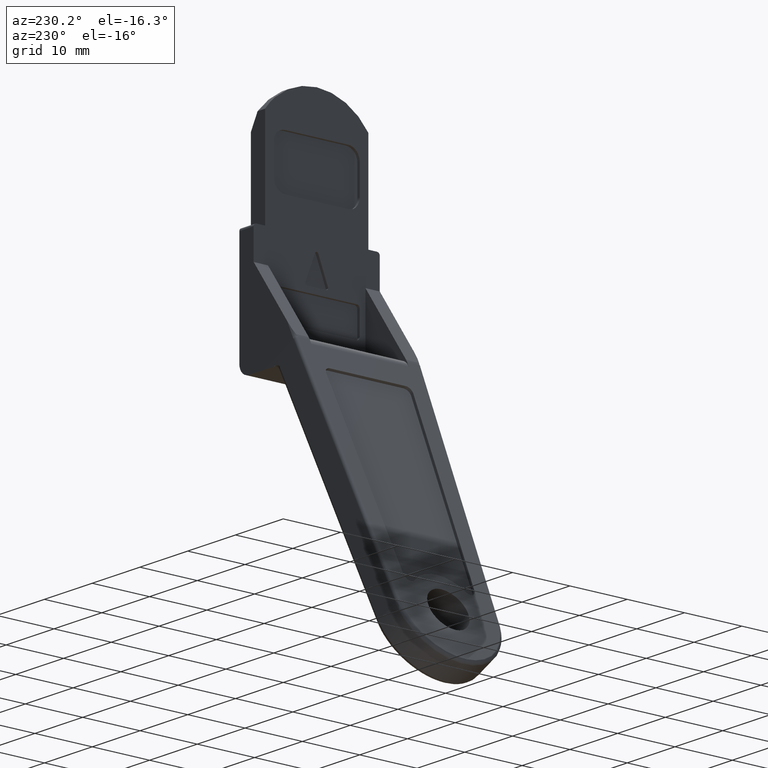
[diagram: clean part render]
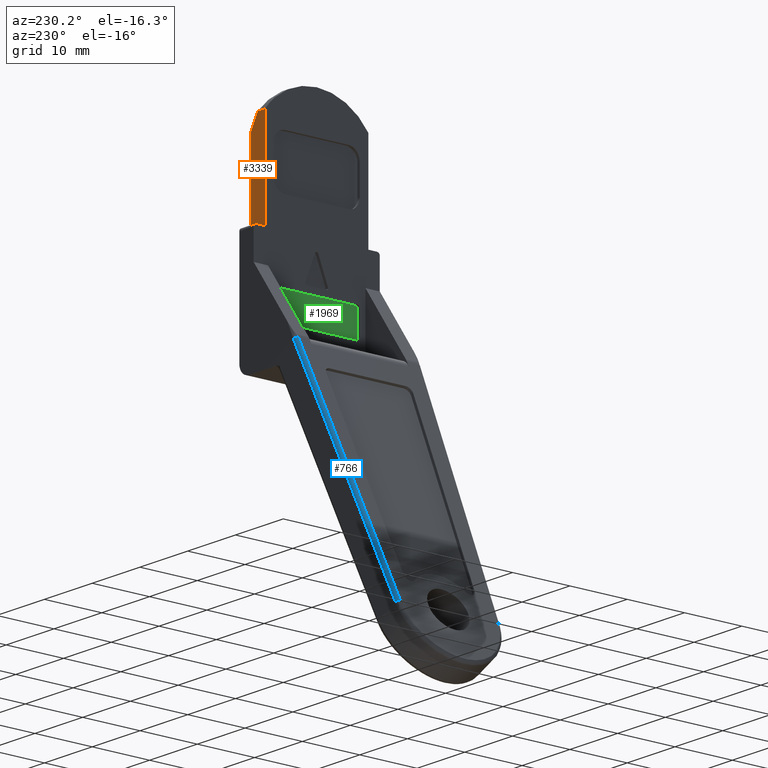
[diagram: same view with three faces highlighted in distinct colors, each labeled with its STEP entity id]
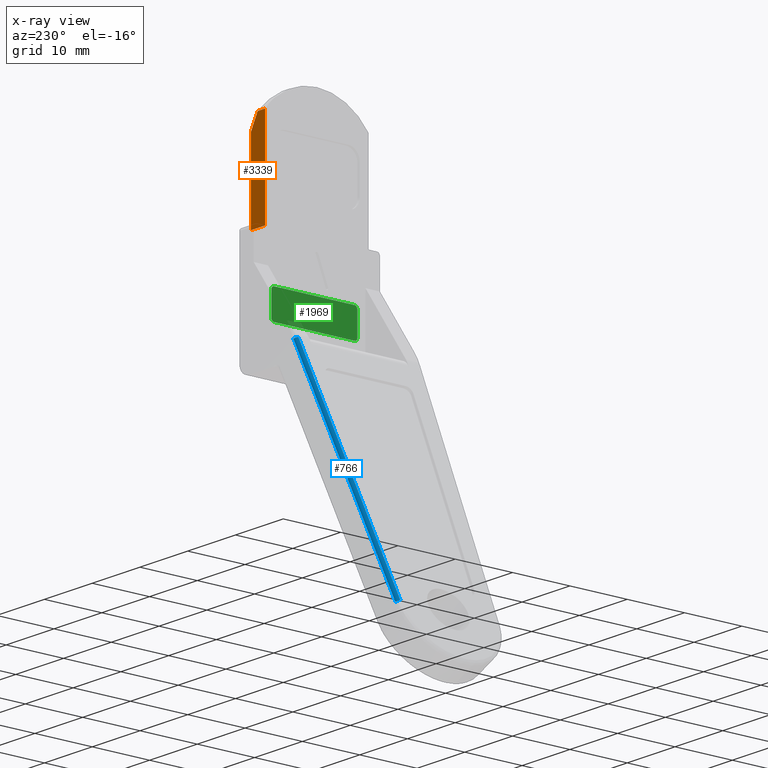
[diagram: x-ray of the same camera — body ghosted, the three highlighted faces saturated]
A machine part, auxiliary view with three faces highlighted in distinct colors.
The next image is the same camera in x-ray (body ghosted, the three faces saturated) — at least one of them is partly hidden behind the body in this view.
Their STEP definitions:

[orange] entity #3339 — the highlighted face is a freeform B-spline surface patch.
#2228=CARTESIAN_POINT('',(-1.418151426887560,9.000000025121729,6.324555284587900));
#2229=VERTEX_POINT('',#2228);
#2230=CARTESIAN_POINT('',(0.0,9.0,3.702697320336655));
#2231=VERTEX_POINT('',#2230);
#2232=CARTESIAN_POINT('',(-1.418151426887560,9.000000025121729,6.324555284587900));
#2233=CARTESIAN_POINT('',(-1.291489584601678,9.0,6.110439896160978));
#2234=CARTESIAN_POINT('',(-1.166475477758860,8.999999999999998,5.895251888107450));
#2235=CARTESIAN_POINT('',(-0.920237321511219,9.0,5.462408673755043));
#2236=CARTESIAN_POINT('',(-0.799094194356084,8.999999999999998,5.244890884922150));
#2237=CARTESIAN_POINT('',(-0.443034771754013,9.000000000000004,4.589613871422985));
#2238=CARTESIAN_POINT('',(-0.215213089639945,8.999999999999998,4.148782564435035));
#2239=CARTESIAN_POINT('',(-5.249350E-017,9.0,3.702697320336656));
#2240=B_SPLINE_CURVE_WITH_KNOTS('',3,(#2232,#2233,#2234,#2235,#2236,#2237,#2238,#2239),.UNSPECIFIED.,.F.,.U.,(4,2,2,4),(0.0,0.250000000000000,0.500000000000000,1.0),.UNSPECIFIED.);
#2241=EDGE_CURVE('',#2229,#2231,#2240,.T.);
#3305=CARTESIAN_POINT('',(-3.149849994185419,9.0,7.139966942656156));
#3306=CARTESIAN_POINT('',(-3.149849994185419,9.0,-10.815411949974051));
#3307=CARTESIAN_POINT('',(0.149850074651688,9.0,7.139966942656156));
#3308=CARTESIAN_POINT('',(0.149850074651688,9.0,-10.815411949974051));
#3309=B_SPLINE_SURFACE_WITH_KNOTS('',1,1,((#3305,#3307),(#3306,#3308)),.UNSPECIFIED.,.F.,.F.,.U.,(2,2),(2,2),(0.0,17.955378892630211),(0.0,3.299700068837107),.UNSPECIFIED.);
#3310=CARTESIAN_POINT('',(-3.0,9.000000025121729,6.324555284587900));
#3311=VERTEX_POINT('',#3310);
#3312=CARTESIAN_POINT('',(-1.418151426887560,9.000000025121729,6.324555284587900));
#3313=CARTESIAN_POINT('',(-3.0,9.000000025121729,6.324555284587900));
#3314=QUASI_UNIFORM_CURVE('',1,(#3312,#3313),.UNSPECIFIED.,.F.,.U.);
#3315=EDGE_CURVE('',#2229,#3311,#3314,.T.);
#3316=ORIENTED_EDGE('',*,*,#3315,.F.);
#3317=ORIENTED_EDGE('',*,*,#2241,.T.);
#3318=CARTESIAN_POINT('',(0.0,9.0,-10.0));
#3319=VERTEX_POINT('',#3318);
#3320=CARTESIAN_POINT('',(0.0,9.0,-10.0));
#3321=CARTESIAN_POINT('',(0.0,9.0,3.702697320336655));
#3322=QUASI_UNIFORM_CURVE('',1,(#3320,#3321),.UNSPECIFIED.,.F.,.U.);
#3323=EDGE_CURVE('',#3319,#2231,#3322,.T.);
#3324=ORIENTED_EDGE('',*,*,#3323,.F.);
#3325=CARTESIAN_POINT('',(-3.0,9.0,-10.0));
#3326=VERTEX_POINT('',#3325);
#3327=CARTESIAN_POINT('',(0.0,9.0,-10.0));
#3328=CARTESIAN_POINT('',(-3.0,9.0,-10.0));
#3329=QUASI_UNIFORM_CURVE('',1,(#3327,#3328),.UNSPECIFIED.,.F.,.U.);
#3330=EDGE_CURVE('',#3319,#3326,#3329,.T.);
#3331=ORIENTED_EDGE('',*,*,#3330,.T.);
#3332=CARTESIAN_POINT('',(-3.0,9.0,-10.0));
#3333=CARTESIAN_POINT('',(-3.0,9.000000025121729,6.324555284587900));
#3334=QUASI_UNIFORM_CURVE('',1,(#3332,#3333),.UNSPECIFIED.,.F.,.U.);
#3335=EDGE_CURVE('',#3326,#3311,#3334,.T.);
#3336=ORIENTED_EDGE('',*,*,#3335,.T.);
#3337=EDGE_LOOP('',(#3316,#3317,#3324,#3331,#3336));
#3338=FACE_OUTER_BOUND('',#3337,.T.);
#3339=ADVANCED_FACE('',(#3338),#3309,.F.);

[blue] entity #766 — the highlighted face is a freeform B-spline surface patch.
#435=CARTESIAN_POINT('',(-11.321809880560160,10.999499256270340,-28.064427606698501));
#436=VERTEX_POINT('',#435);
#450=CARTESIAN_POINT('',(-11.765509085131701,10.500000000000000,-27.832842829772751));
#451=VERTEX_POINT('',#450);
#452=CARTESIAN_POINT('',(-11.765509085131740,10.500000000000000,-27.832842829772730));
#453=CARTESIAN_POINT('',(-11.769425345618407,10.706899366358787,-27.841241277507859));
#454=CARTESIAN_POINT('',(-11.639468857403470,10.853199311326120,-27.909070888251421));
#455=CARTESIAN_POINT('',(-11.509512369188535,10.999499256293447,-27.976900498994993));
#456=CARTESIAN_POINT('',(-11.321809880560179,10.999499256270340,-28.064427606698530));
#464=(BOUNDED_CURVE()B_SPLINE_CURVE(2,(#452,#453,#454,#455,#456),.UNSPECIFIED.,.F.,.U.)B_SPLINE_CURVE_WITH_KNOTS((3,2,3),(0.0,0.500000000000000,1.0),.UNSPECIFIED.)CURVE()GEOMETRIC_REPRESENTATION_ITEM()RATIONAL_B_SPLINE_CURVE((1.0,0.923879532500603,1.0,0.923879532500603,1.0))REPRESENTATION_ITEM(''));
#465=EDGE_CURVE('',#451,#436,#464,.T.);
#630=CARTESIAN_POINT('',(-30.717667459222952,8.491487356595739,-68.475877713296512));
#631=VERTEX_POINT('',#630);
#647=CARTESIAN_POINT('',(-30.273968254651351,8.990986612866081,-68.707462490222298));
#648=VERTEX_POINT('',#647);
#649=CARTESIAN_POINT('',(-30.717667459222969,8.491487356595739,-68.475877713296526));
#650=CARTESIAN_POINT('',(-30.721583719709635,8.698386722954536,-68.484276161031673));
#651=CARTESIAN_POINT('',(-30.591627231494691,8.844686667921870,-68.552105771775217));
#652=CARTESIAN_POINT('',(-30.461670743279733,8.990986612889200,-68.619935382518790));
#653=CARTESIAN_POINT('',(-30.273968254651368,8.990986612866081,-68.707462490222341));
#661=(BOUNDED_CURVE()B_SPLINE_CURVE(2,(#649,#650,#651,#652,#653),.UNSPECIFIED.,.F.,.U.)B_SPLINE_CURVE_WITH_KNOTS((3,2,3),(0.0,0.500000000000000,1.0),.UNSPECIFIED.)CURVE()GEOMETRIC_REPRESENTATION_ITEM()RATIONAL_B_SPLINE_CURVE((1.0,0.923879532500596,1.0,0.923879532500596,1.0))REPRESENTATION_ITEM(''));
#662=EDGE_CURVE('',#631,#648,#661,.T.);
#738=CARTESIAN_POINT('',(-10.828230627263920,11.049236659743450,-27.057549611480329));
#739=CARTESIAN_POINT('',(-30.739842019043589,8.939043063766849,-69.758138135982549));
#740=CARTESIAN_POINT('',(-11.336080559155899,11.073655340579112,-26.821942031048955));
#741=CARTESIAN_POINT('',(-31.247691950935561,8.963461744602505,-69.522530555551143));
#742=CARTESIAN_POINT('',(-11.289929266880387,10.515218331169393,-26.815865683790982));
#743=CARTESIAN_POINT('',(-31.201540658660043,8.405024735192788,-69.516454208293197));
#751=(BOUNDED_SURFACE()B_SPLINE_SURFACE(1,2,((#738,#740,#742),(#739,#741,#743)),.UNSPECIFIED.,.F.,.F.,.U.)B_SPLINE_SURFACE_WITH_KNOTS((2,2),(3,3),(0.0,47.162118756143698),(0.0,0.994387289110106),.UNSPECIFIED.)GEOMETRIC_REPRESENTATION_ITEM()RATIONAL_B_SPLINE_SURFACE(((1.0,0.664513664345149,0.996234024380918),(1.0,0.664513664345149,0.996234024380918)))REPRESENTATION_ITEM('')SURFACE());
#752=CARTESIAN_POINT('',(-11.765509085131701,10.500000000000000,-27.832842829772751));
#753=CARTESIAN_POINT('',(-30.717667459222952,8.491487356595739,-68.475877713296512));
#754=QUASI_UNIFORM_CURVE('',1,(#752,#753),.UNSPECIFIED.,.F.,.U.);
#755=EDGE_CURVE('',#451,#631,#754,.T.);
#756=ORIENTED_EDGE('',*,*,#755,.F.);
#757=ORIENTED_EDGE('',*,*,#465,.T.);
#758=CARTESIAN_POINT('',(-30.273968254651351,8.990986612866081,-68.707462490222298));
#759=CARTESIAN_POINT('',(-11.321809880560160,10.999499256270340,-28.064427606698501));
#760=QUASI_UNIFORM_CURVE('',1,(#758,#759),.UNSPECIFIED.,.F.,.U.);
#761=EDGE_CURVE('',#648,#436,#760,.T.);
#762=ORIENTED_EDGE('',*,*,#761,.F.);
#763=ORIENTED_EDGE('',*,*,#662,.F.);
#764=EDGE_LOOP('',(#756,#757,#762,#763));
#765=FACE_OUTER_BOUND('',#764,.T.);
#766=ADVANCED_FACE('',(#765),#751,.T.);

[green] entity #1969 — the highlighted face is a freeform B-spline surface patch.
#1874=CARTESIAN_POINT('',(-2.500000000000000,8.249249970927089,-17.750250009690969));
#1875=CARTESIAN_POINT('',(-2.500000000000000,-8.249250373258443,-17.750250009690969));
#1876=CARTESIAN_POINT('',(-2.500000000000000,8.249249970927089,-23.249750124419489));
#1877=CARTESIAN_POINT('',(-2.500000000000000,-8.249250373258443,-23.249750124419489));
#1878=B_SPLINE_SURFACE_WITH_KNOTS('',1,1,((#1874,#1876),(#1875,#1877)),.UNSPECIFIED.,.F.,.F.,.U.,(2,2),(2,2),(0.0,16.498500344185530),(0.0,5.499500114728519),.UNSPECIFIED.);
#1879=CARTESIAN_POINT('',(-2.499999999999945,-7.0,-18.0));
#1880=VERTEX_POINT('',#1879);
#1881=CARTESIAN_POINT('',(-2.499999999999945,7.0,-18.0));
#1882=VERTEX_POINT('',#1881);
#1883=CARTESIAN_POINT('',(-2.499999999999945,-7.0,-18.0));
#1884=CARTESIAN_POINT('',(-2.499999999999945,7.0,-18.0));
#1885=QUASI_UNIFORM_CURVE('',1,(#1883,#1884),.UNSPECIFIED.,.F.,.U.);
#1886=EDGE_CURVE('',#1880,#1882,#1885,.T.);
#1887=ORIENTED_EDGE('',*,*,#1886,.T.);
#1888=CARTESIAN_POINT('',(-2.499999999999945,7.500000000000000,-18.500000000000000));
#1889=VERTEX_POINT('',#1888);
#1890=CARTESIAN_POINT('',(-2.499999999999945,7.0,-18.0));
#1891=CARTESIAN_POINT('',(-2.499999999999945,7.500000000000000,-18.000000000000007));
#1892=CARTESIAN_POINT('',(-2.499999999999945,7.500000000000000,-18.500000000000000));
#1900=(BOUNDED_CURVE()B_SPLINE_CURVE(2,(#1890,#1891,#1892),.UNSPECIFIED.,.F.,.U.)CURVE()GEOMETRIC_REPRESENTATION_ITEM()QUASI_UNIFORM_CURVE()RATIONAL_B_SPLINE_CURVE((1.0,0.707106781186548,1.0))REPRESENTATION_ITEM(''));
#1901=EDGE_CURVE('',#1882,#1889,#1900,.T.);
#1902=ORIENTED_EDGE('',*,*,#1901,.T.);
#1903=CARTESIAN_POINT('',(-2.499999999999945,7.500000000000000,-22.500000000000000));
#1904=VERTEX_POINT('',#1903);
#1905=CARTESIAN_POINT('',(-2.499999999999945,7.500000000000000,-18.500000000000000));
#1906=CARTESIAN_POINT('',(-2.499999999999945,7.500000000000000,-22.500000000000000));
#1907=QUASI_UNIFORM_CURVE('',1,(#1905,#1906),.UNSPECIFIED.,.F.,.U.);
#1908=EDGE_CURVE('',#1889,#1904,#1907,.T.);
#1909=ORIENTED_EDGE('',*,*,#1908,.T.);
#1910=CARTESIAN_POINT('',(-2.499999999999945,7.0,-23.0));
#1911=VERTEX_POINT('',#1910);
#1912=CARTESIAN_POINT('',(-2.499999999999945,7.500000000000000,-22.500000000000000));
#1913=CARTESIAN_POINT('',(-2.499999999999945,7.500000000000000,-22.999999999999993));
#1914=CARTESIAN_POINT('',(-2.499999999999945,7.0,-23.0));
#1922=(BOUNDED_CURVE()B_SPLINE_CURVE(2,(#1912,#1913,#1914),.UNSPECIFIED.,.F.,.U.)CURVE()GEOMETRIC_REPRESENTATION_ITEM()QUASI_UNIFORM_CURVE()RATIONAL_B_SPLINE_CURVE((1.0,0.707106781186548,1.0))REPRESENTATION_ITEM(''));
#1923=EDGE_CURVE('',#1904,#1911,#1922,.T.);
#1924=ORIENTED_EDGE('',*,*,#1923,.T.);
#1925=CARTESIAN_POINT('',(-2.499999999999945,-7.0,-23.0));
#1926=VERTEX_POINT('',#1925);
#1927=CARTESIAN_POINT('',(-2.499999999999945,7.0,-23.0));
#1928=CARTESIAN_POINT('',(-2.499999999999945,-7.0,-23.0));
#1929=QUASI_UNIFORM_CURVE('',1,(#1927,#1928),.UNSPECIFIED.,.F.,.U.);
#1930=EDGE_CURVE('',#1911,#1926,#1929,.T.);
#1931=ORIENTED_EDGE('',*,*,#1930,.T.);
#1932=CARTESIAN_POINT('',(-2.499999999999945,-7.500000000000000,-22.500000000000000));
#1933=VERTEX_POINT('',#1932);
#1934=CARTESIAN_POINT('',(-2.499999999999945,-7.0,-23.0));
#1935=CARTESIAN_POINT('',(-2.499999999999945,-7.500000000000000,-22.999999999999993));
#1936=CARTESIAN_POINT('',(-2.499999999999945,-7.500000000000000,-22.500000000000000));
#1944=(BOUNDED_CURVE()B_SPLINE_CURVE(2,(#1934,#1935,#1936),.UNSPECIFIED.,.F.,.U.)CURVE()GEOMETRIC_REPRESENTATION_ITEM()QUASI_UNIFORM_CURVE()RATIONAL_B_SPLINE_CURVE((1.0,0.707106781186548,1.0))REPRESENTATION_ITEM(''));
#1945=EDGE_CURVE('',#1926,#1933,#1944,.T.);
#1946=ORIENTED_EDGE('',*,*,#1945,.T.);
#1947=CARTESIAN_POINT('',(-2.499999999999945,-7.500000000000000,-18.500000000000000));
#1948=VERTEX_POINT('',#1947);
#1949=CARTESIAN_POINT('',(-2.499999999999945,-7.500000000000000,-22.500000000000000));
#1950=CARTESIAN_POINT('',(-2.499999999999945,-7.500000000000000,-18.500000000000000));
#1951=QUASI_UNIFORM_CURVE('',1,(#1949,#1950),.UNSPECIFIED.,.F.,.U.);
#1952=EDGE_CURVE('',#1933,#1948,#1951,.T.);
#1953=ORIENTED_EDGE('',*,*,#1952,.T.);
#1954=CARTESIAN_POINT('',(-2.499999999999945,-7.500000000000000,-18.500000000000000));
#1955=CARTESIAN_POINT('',(-2.499999999999945,-7.500000000000000,-18.000000000000007));
#1956=CARTESIAN_POINT('',(-2.499999999999945,-7.0,-18.0));
#1964=(BOUNDED_CURVE()B_SPLINE_CURVE(2,(#1954,#1955,#1956),.UNSPECIFIED.,.F.,.U.)CURVE()GEOMETRIC_REPRESENTATION_ITEM()QUASI_UNIFORM_CURVE()RATIONAL_B_SPLINE_CURVE((1.0,0.707106781186548,1.0))REPRESENTATION_ITEM(''));
#1965=EDGE_CURVE('',#1948,#1880,#1964,.T.);
#1966=ORIENTED_EDGE('',*,*,#1965,.T.);
#1967=EDGE_LOOP('',(#1887,#1902,#1909,#1924,#1931,#1946,#1953,#1966));
#1968=FACE_OUTER_BOUND('',#1967,.T.);
#1969=ADVANCED_FACE('',(#1968),#1878,.F.);